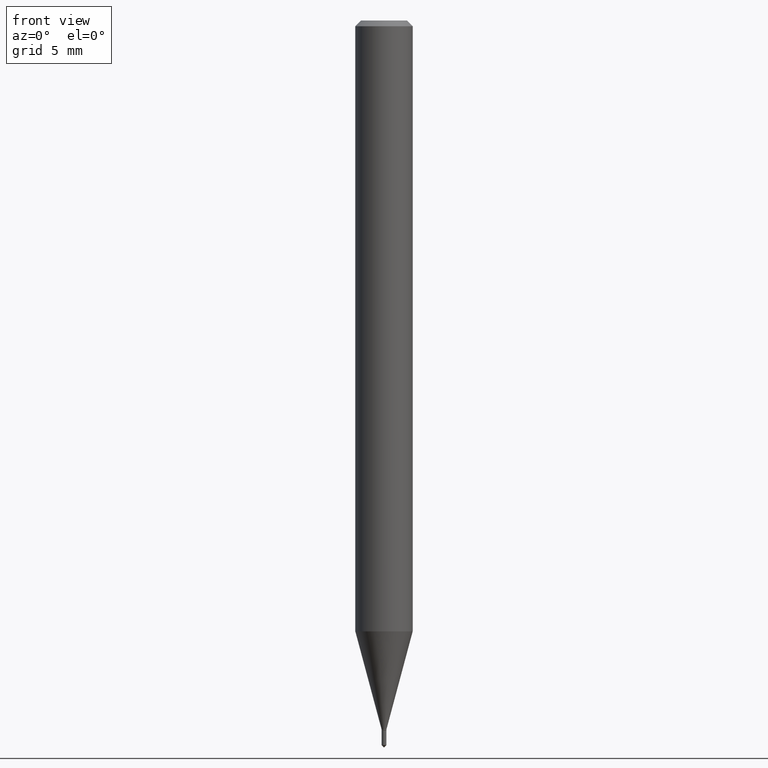
[diagram: clean part render]
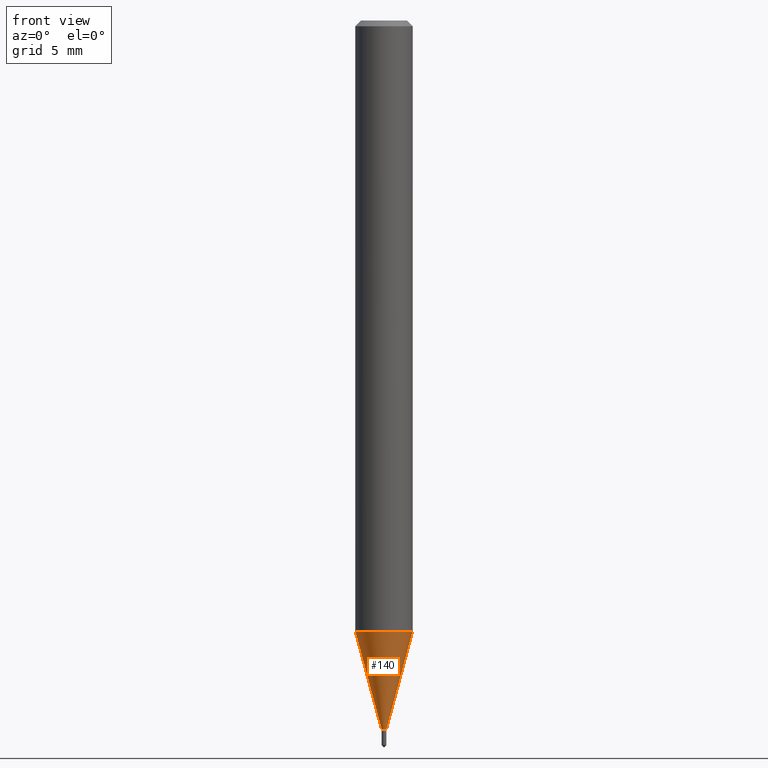
[diagram: same view with one face highlighted and labeled with its STEP entity id]
A machine part, front view. The second image highlights one B-rep face of the part: STEP entity #140.
In plain terms, the highlighted conical surface has half-angle 15 deg.
Its self-contained STEP definition (entity closure, byte-faithful):
#1 = DIRECTION ( 'NONE',  ( 1.000000000000000000, -6.982962677686196502E-15, 0.000000000000000000 ) ) ;
#3 = VERTEX_POINT ( 'NONE', #424 ) ;
#12 = CARTESIAN_POINT ( 'NONE',  ( 3.568428081985351240E-29, -5.094769569639917175E-15, -1.459199999999999831 ) ) ;
#20 = EDGE_CURVE ( 'NONE', #479, #99, #36, .T. ) ;
#30 = EDGE_CURVE ( 'NONE', #479, #414, #205, .T. ) ;
#36 = LINE ( 'NONE', #296, #431 ) ;
#39 = DIRECTION ( 'NONE',  ( -2.445468806185136597E-29, 3.491481338843145583E-15, 1.000000000000000000 ) ) ;
#41 = ORIENTED_EDGE ( 'NONE', *, *, #20, .F. ) ;
#49 = DIRECTION ( 'NONE',  ( -2.445468806185136597E-29, 3.491481338843145583E-15, 1.000000000000000000 ) ) ;
#70 = EDGE_LOOP ( 'NONE', ( #41, #406, #369, #171 ) ) ;
#78 = DIRECTION ( 'NONE',  ( -0.2588190451025211836, 5.211531920934547886E-15, 0.9659258262890679791 ) ) ;
#99 = VERTEX_POINT ( 'NONE', #109 ) ;
#109 = CARTESIAN_POINT ( 'NONE',  ( -0.05905000000000017180, -3.969598695798013952E-15, -1.257109448770144855 ) ) ;
#114 = AXIS2_PLACEMENT_3D ( 'NONE', #488, #39, #1 ) ;
#123 = CARTESIAN_POINT ( 'NONE',  ( 3.074221942927981307E-29, -4.389174181264353445E-15, -1.257109448770144855 ) ) ;
#140 = ADVANCED_FACE ( 'NONE', ( #437 ), #326, .T. ) ;
#143 = AXIS2_PLACEMENT_3D ( 'NONE', #12, #49, #166 ) ;
#166 = DIRECTION ( 'NONE',  ( 1.000000000000000000, -6.982962677686196502E-15, 0.000000000000000000 ) ) ;
#171 = ORIENTED_EDGE ( 'NONE', *, *, #199, .F. ) ;
#182 = CARTESIAN_POINT ( 'NONE',  ( 0.004899999999999998107, -5.128986086760580222E-15, -1.459199999999999831 ) ) ;
#199 = EDGE_CURVE ( 'NONE', #99, #3, #412, .T. ) ;
#205 = CIRCLE ( 'NONE', #114, 0.004899999999999998107 ) ;
#235 = DIRECTION ( 'NONE',  ( -2.445468806185136597E-29, 3.491481338843145583E-15, 1.000000000000000000 ) ) ;
#250 = LINE ( 'NONE', #182, #313 ) ;
#296 = CARTESIAN_POINT ( 'NONE',  ( -0.004899999999999998107, -5.059952975587672945E-15, -1.459199999999999831 ) ) ;
#304 = CARTESIAN_POINT ( 'NONE',  ( -0.004899999999999998107, -5.061698716257093659E-15, -1.459199999999999831 ) ) ;
#313 = VECTOR ( 'NONE', #374, 39.37007874015748854 ) ;
#319 = DIRECTION ( 'NONE',  ( 1.000000000000000000, -6.982962677686268288E-15, 0.000000000000000000 ) ) ;
#326 = CONICAL_SURFACE ( 'NONE', #143, 0.004899999999999998107, 0.2617993877991499074 ) ;
#357 = EDGE_CURVE ( 'NONE', #414, #3, #250, .T. ) ;
#369 = ORIENTED_EDGE ( 'NONE', *, *, #357, .T. ) ;
#374 = DIRECTION ( 'NONE',  ( 0.2588190451025211836, 1.565188264969622559E-15, 0.9659258262890679791 ) ) ;
#388 = AXIS2_PLACEMENT_3D ( 'NONE', #123, #235, #319 ) ;
#406 = ORIENTED_EDGE ( 'NONE', *, *, #30, .T. ) ;
#412 = CIRCLE ( 'NONE', #388, 0.05905000000000017180 ) ;
#414 = VERTEX_POINT ( 'NONE', #420 ) ;
#420 = CARTESIAN_POINT ( 'NONE',  ( 0.004899999999999998107, -5.128986086760580222E-15, -1.459199999999999831 ) ) ;
#424 = CARTESIAN_POINT ( 'NONE',  ( 0.05905000000000017180, -4.801518127381729154E-15, -1.257109448770144855 ) ) ;
#431 = VECTOR ( 'NONE', #78, 39.37007874015748854 ) ;
#437 = FACE_OUTER_BOUND ( 'NONE', #70, .T. ) ;
#479 = VERTEX_POINT ( 'NONE', #304 ) ;
#488 = CARTESIAN_POINT ( 'NONE',  ( 3.568428081985351240E-29, -5.094769569639917175E-15, -1.459199999999999831 ) ) ;